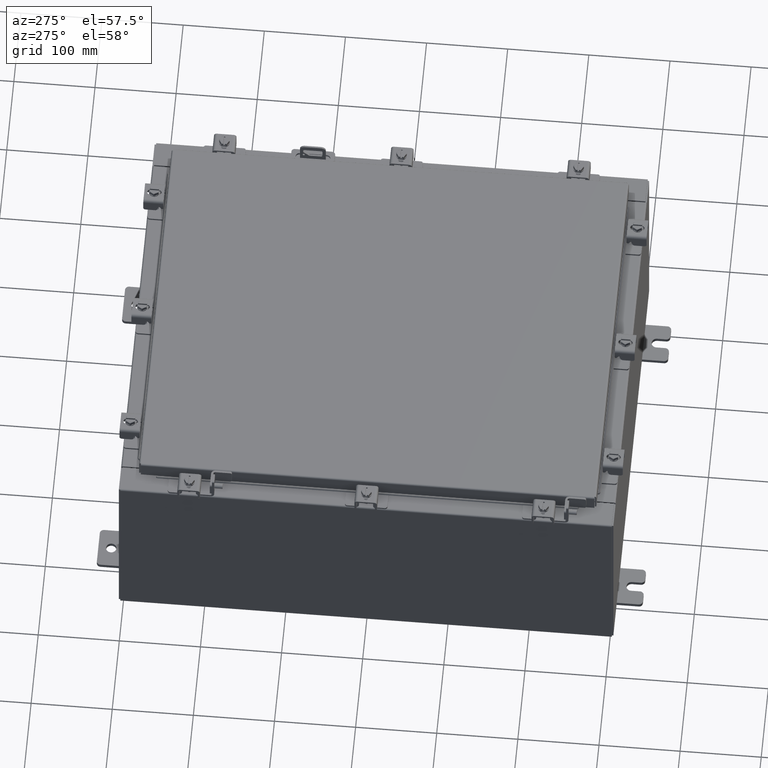
[diagram: clean part render]
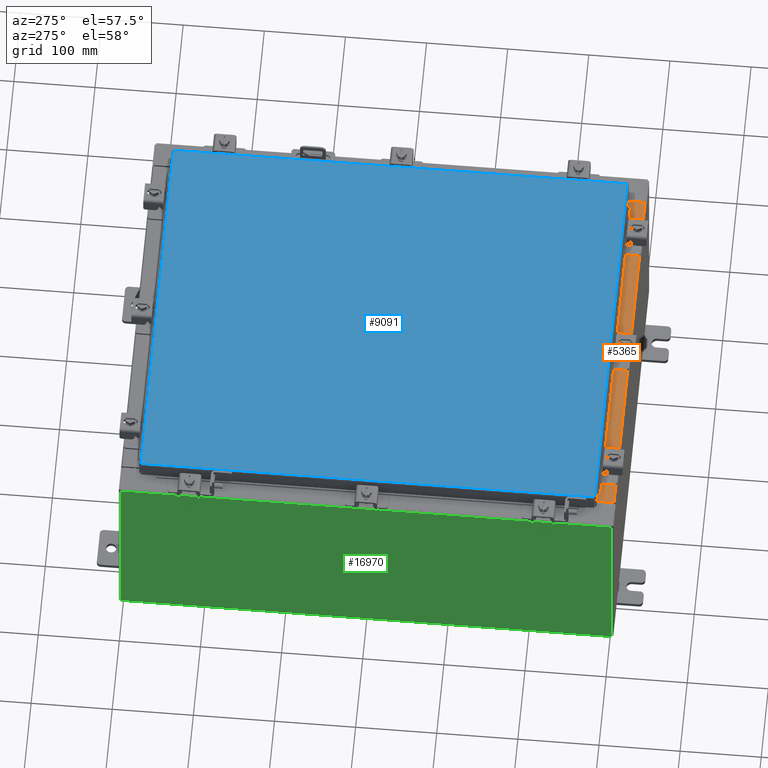
[diagram: same view with three faces highlighted in distinct colors, each labeled with its STEP entity id]
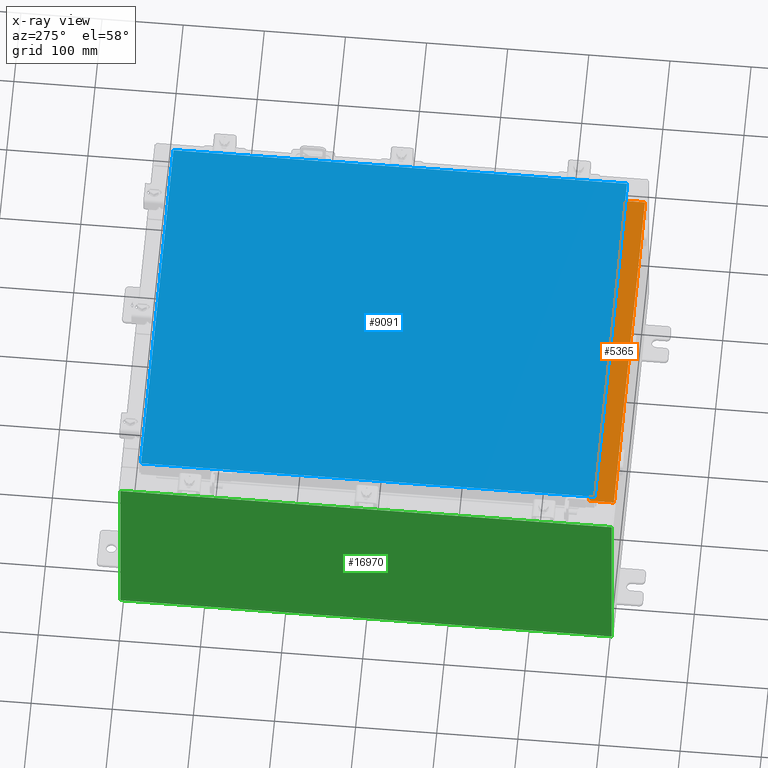
[diagram: x-ray of the same camera — body ghosted, the three highlighted faces saturated]
A machine part, auxiliary view with three faces highlighted in distinct colors.
The next image is the same camera in x-ray (body ghosted, the three faces saturated) — at least one of them is partly hidden behind the body in this view.
Their STEP definitions:

[orange] entity #5365 — the highlighted planar face has unit normal (-0, -0, 1).
#21 = EDGE_CURVE ( 'NONE', #11141, #3687, #13192, .T. ) ;
#881 = EDGE_CURVE ( 'NONE', #19076, #9004, #12891, .T. ) ;
#2588 = CARTESIAN_POINT ( 'NONE',  ( 8.637200000000000000, -1.287299999999999900, 5.000000000000003600 ) ) ;
#2998 = ORIENTED_EDGE ( 'NONE', *, *, #5476, .F. ) ;
#3687 = VERTEX_POINT ( 'NONE', #17228 ) ;
#3908 = VECTOR ( 'NONE', #18289, 39.37007874015748100 ) ;
#4674 = CARTESIAN_POINT ( 'NONE',  ( -8.637200000000000000, -0.07469999999999973900, 5.000000000000000000 ) ) ;
#4784 = FACE_OUTER_BOUND ( 'NONE', #11983, .T. ) ;
#5365 = ADVANCED_FACE ( 'NONE', ( #4784 ), #6549, .T. ) ;
#5476 = EDGE_CURVE ( 'NONE', #19076, #11141, #16521, .T. ) ;
#6422 = DIRECTION ( 'NONE',  ( -0.0000000000000000000, 1.000000000000000000, -3.566381192773190000E-015 ) ) ;
#6491 = CARTESIAN_POINT ( 'NONE',  ( 0.0000000000000000000, 1.782631094477737600E-014, 5.000000000000000000 ) ) ;
#6549 = PLANE ( 'NONE',  #21257 ) ;
#6577 = EDGE_CURVE ( 'NONE', #3687, #9004, #16478, .T. ) ;
#6677 = VECTOR ( 'NONE', #10542, 39.37007874015748100 ) ;
#6753 = ORIENTED_EDGE ( 'NONE', *, *, #6577, .F. ) ;
#7965 = ORIENTED_EDGE ( 'NONE', *, *, #21, .F. ) ;
#8126 = CARTESIAN_POINT ( 'NONE',  ( 8.637200000000000000, -1.287299999999999900, 5.000000000000004400 ) ) ;
#8329 = DIRECTION ( 'NONE',  ( 0.0000000000000000000, 3.566381192773190000E-015, 1.000000000000000000 ) ) ;
#9004 = VERTEX_POINT ( 'NONE', #11886 ) ;
#10542 = DIRECTION ( 'NONE',  ( -0.0000000000000000000, -1.000000000000000000, 3.566381192773190000E-015 ) ) ;
#11141 = VERTEX_POINT ( 'NONE', #8126 ) ;
#11886 = CARTESIAN_POINT ( 'NONE',  ( -8.637200000000000000, -0.08770000000000081900, 5.000000000000000000 ) ) ;
#11983 = EDGE_LOOP ( 'NONE', ( #6753, #7965, #2998, #16092 ) ) ;
#12280 = CARTESIAN_POINT ( 'NONE',  ( 8.637200000000000000, -1.300299999999999800, 5.000000000000004400 ) ) ;
#12891 = LINE ( 'NONE', #21177, #17520 ) ;
#13192 = LINE ( 'NONE', #2588, #3908 ) ;
#16092 = ORIENTED_EDGE ( 'NONE', *, *, #881, .T. ) ;
#16478 = LINE ( 'NONE', #4674, #19962 ) ;
#16521 = LINE ( 'NONE', #12280, #6677 ) ;
#17228 = CARTESIAN_POINT ( 'NONE',  ( -8.637200000000000000, -1.287299999999999200, 5.000000000000004400 ) ) ;
#17520 = VECTOR ( 'NONE', #17773, 39.37007874015748100 ) ;
#17773 = DIRECTION ( 'NONE',  ( -1.000000000000000000, -6.325772226333218300E-017, 2.256011509776178200E-031 ) ) ;
#18289 = DIRECTION ( 'NONE',  ( -1.000000000000000000, 0.0000000000000000000, 0.0000000000000000000 ) ) ;
#19076 = VERTEX_POINT ( 'NONE', #20081 ) ;
#19962 = VECTOR ( 'NONE', #6422, 39.37007874015748100 ) ;
#20081 = CARTESIAN_POINT ( 'NONE',  ( 8.637200000000000000, -0.08770000000000047200, 5.000000000000000000 ) ) ;
#20459 = DIRECTION ( 'NONE',  ( 0.0000000000000000000, -1.000000000000000000, 3.566381192773190000E-015 ) ) ;
#21177 = CARTESIAN_POINT ( 'NONE',  ( 5.547702242495411600E-018, -0.08770000000000081900, 5.000000000000000000 ) ) ;
#21257 = AXIS2_PLACEMENT_3D ( 'NONE', #6491, #8329, #20459 ) ;

[blue] entity #9091 — the highlighted planar face has unit normal (0, 0, -1).
#1045 = DIRECTION ( 'NONE',  ( 0.0000000000000000000, -1.000000000000000000, 0.0000000000000000000 ) ) ;
#1265 = CARTESIAN_POINT ( 'NONE',  ( -9.006300000000001300, -11.00629999999999600, 0.0000000000000000000 ) ) ;
#1476 = VERTEX_POINT ( 'NONE', #7967 ) ;
#2284 = CARTESIAN_POINT ( 'NONE',  ( 9.006299999999997800, 11.00630000000000100, -2.185478394931410600E-015 ) ) ;
#2721 = CARTESIAN_POINT ( 'NONE',  ( 9.006299999999997800, 11.00630000000000100, -2.185478394931410600E-015 ) ) ;
#3077 = LINE ( 'NONE', #8408, #7189 ) ;
#3556 = PLANE ( 'NONE',  #8224 ) ;
#5328 = DIRECTION ( 'NONE',  ( 0.0000000000000000000, 0.0000000000000000000, -1.000000000000000000 ) ) ;
#5615 = EDGE_LOOP ( 'NONE', ( #18659, #21388, #9303, #14180 ) ) ;
#6119 = LINE ( 'NONE', #21942, #9149 ) ;
#6542 = EDGE_CURVE ( 'NONE', #1476, #15355, #3077, .T. ) ;
#7189 = VECTOR ( 'NONE', #13656, 39.37007874015748100 ) ;
#7304 = VECTOR ( 'NONE', #12763, 39.37007874015748100 ) ;
#7316 = VERTEX_POINT ( 'NONE', #16075 ) ;
#7903 = DIRECTION ( 'NONE',  ( 1.000000000000000000, -0.0000000000000000000, -0.0000000000000000000 ) ) ;
#7967 = CARTESIAN_POINT ( 'NONE',  ( 9.006299999999997800, -11.00629999999999600, 0.0000000000000000000 ) ) ;
#8224 = AXIS2_PLACEMENT_3D ( 'NONE', #18955, #5328, #17516 ) ;
#8335 = EDGE_CURVE ( 'NONE', #15355, #7316, #17123, .T. ) ;
#8408 = CARTESIAN_POINT ( 'NONE',  ( 9.006299999999997800, -11.00629999999999600, 0.0000000000000000000 ) ) ;
#9091 = ADVANCED_FACE ( 'NONE', ( #13830 ), #3556, .F. ) ;
#9149 = VECTOR ( 'NONE', #1045, 39.37007874015748100 ) ;
#9303 = ORIENTED_EDGE ( 'NONE', *, *, #8335, .T. ) ;
#10106 = EDGE_CURVE ( 'NONE', #7316, #21888, #6119, .T. ) ;
#11679 = VECTOR ( 'NONE', #7903, 39.37007874015748100 ) ;
#12763 = DIRECTION ( 'NONE',  ( -1.000000000000000000, -0.0000000000000000000, -0.0000000000000000000 ) ) ;
#13656 = DIRECTION ( 'NONE',  ( 0.0000000000000000000, 1.000000000000000000, 0.0000000000000000000 ) ) ;
#13830 = FACE_OUTER_BOUND ( 'NONE', #5615, .T. ) ;
#14180 = ORIENTED_EDGE ( 'NONE', *, *, #10106, .T. ) ;
#15355 = VERTEX_POINT ( 'NONE', #2721 ) ;
#16075 = CARTESIAN_POINT ( 'NONE',  ( -9.006300000000001300, 11.00630000000000100, 0.0000000000000000000 ) ) ;
#17123 = LINE ( 'NONE', #2284, #7304 ) ;
#17516 = DIRECTION ( 'NONE',  ( -1.000000000000000000, 0.0000000000000000000, -0.0000000000000000000 ) ) ;
#18308 = CARTESIAN_POINT ( 'NONE',  ( -9.006300000000001300, -11.00629999999999600, 0.0000000000000000000 ) ) ;
#18659 = ORIENTED_EDGE ( 'NONE', *, *, #21090, .T. ) ;
#18955 = CARTESIAN_POINT ( 'NONE',  ( 0.0000000000000000000, 0.0000000000000000000, 0.0000000000000000000 ) ) ;
#19829 = LINE ( 'NONE', #18308, #11679 ) ;
#21090 = EDGE_CURVE ( 'NONE', #21888, #1476, #19829, .T. ) ;
#21388 = ORIENTED_EDGE ( 'NONE', *, *, #6542, .T. ) ;
#21888 = VERTEX_POINT ( 'NONE', #1265 ) ;
#21942 = CARTESIAN_POINT ( 'NONE',  ( -9.006300000000001300, 11.00630000000000100, 0.0000000000000000000 ) ) ;

[green] entity #16970 — the highlighted planar face has unit normal (1, 0, 0).
#190 = CARTESIAN_POINT ( 'NONE',  ( -10.00000000000000000, 11.92530000000000000, 0.01299999999999984700 ) ) ;
#279 = ORIENTED_EDGE ( 'NONE', *, *, #5541, .F. ) ;
#591 = PLANE ( 'NONE',  #3322 ) ;
#1577 = LINE ( 'NONE', #9867, #6804 ) ;
#1841 = VERTEX_POINT ( 'NONE', #5271 ) ;
#2139 = DIRECTION ( 'NONE',  ( -3.523082860860888200E-015, 0.0000000000000000000, 1.000000000000000000 ) ) ;
#2456 = ORIENTED_EDGE ( 'NONE', *, *, #19775, .T. ) ;
#2931 = VECTOR ( 'NONE', #22358, 39.37007874015748100 ) ;
#3322 = AXIS2_PLACEMENT_3D ( 'NONE', #7583, #16374, #5907 ) ;
#3623 = EDGE_CURVE ( 'NONE', #18865, #22229, #16351, .T. ) ;
#3880 = CARTESIAN_POINT ( 'NONE',  ( -10.00000000000003600, -11.92529999999999500, 9.837599999999998300 ) ) ;
#4518 = EDGE_CURVE ( 'NONE', #12392, #18865, #10840, .T. ) ;
#5021 = ORIENTED_EDGE ( 'NONE', *, *, #4518, .T. ) ;
#5271 = CARTESIAN_POINT ( 'NONE',  ( -10.00000000000000000, 11.92530000000000000, 0.01299999999999984300 ) ) ;
#5541 = EDGE_CURVE ( 'NONE', #12392, #1841, #6122, .T. ) ;
#5907 = DIRECTION ( 'NONE',  ( 3.523082860860887800E-015, 0.0000000000000000000, -1.000000000000000000 ) ) ;
#6122 = LINE ( 'NONE', #190, #11315 ) ;
#6415 = DIRECTION ( 'NONE',  ( 3.523082860860888200E-015, 0.0000000000000000000, -1.000000000000000000 ) ) ;
#6804 = VECTOR ( 'NONE', #6415, 39.37007874015748100 ) ;
#7583 = CARTESIAN_POINT ( 'NONE',  ( -10.00000000000000000, 0.0000000000000000000, -3.549164226462045900E-014 ) ) ;
#9867 = CARTESIAN_POINT ( 'NONE',  ( -10.00000000000000000, 11.92530000000000000, -3.549164226462045900E-014 ) ) ;
#10222 = CARTESIAN_POINT ( 'NONE',  ( -10.00000000000003600, -11.92530000000000000, 9.837599999999998300 ) ) ;
#10840 = LINE ( 'NONE', #14395, #11364 ) ;
#11315 = VECTOR ( 'NONE', #12425, 39.37007874015748100 ) ;
#11364 = VECTOR ( 'NONE', #2139, 39.37007874015748100 ) ;
#12392 = VERTEX_POINT ( 'NONE', #20072 ) ;
#12425 = DIRECTION ( 'NONE',  ( -0.0000000000000000000, 1.000000000000000000, -0.0000000000000000000 ) ) ;
#12579 = CARTESIAN_POINT ( 'NONE',  ( -10.00000000000003600, 11.92530000000000000, 9.837599999999998300 ) ) ;
#14395 = CARTESIAN_POINT ( 'NONE',  ( -10.00000000000000000, -11.92530000000000000, -3.549164226462045900E-014 ) ) ;
#15149 = FACE_OUTER_BOUND ( 'NONE', #20149, .T. ) ;
#16351 = LINE ( 'NONE', #10222, #2931 ) ;
#16374 = DIRECTION ( 'NONE',  ( 1.000000000000000000, 0.0000000000000000000, 3.523082860860887800E-015 ) ) ;
#16970 = ADVANCED_FACE ( 'NONE', ( #15149 ), #591, .F. ) ;
#18827 = ORIENTED_EDGE ( 'NONE', *, *, #3623, .T. ) ;
#18865 = VERTEX_POINT ( 'NONE', #3880 ) ;
#19775 = EDGE_CURVE ( 'NONE', #22229, #1841, #1577, .T. ) ;
#20072 = CARTESIAN_POINT ( 'NONE',  ( -10.00000000000000000, -11.92529999999999800, 0.01299999999999984700 ) ) ;
#20149 = EDGE_LOOP ( 'NONE', ( #18827, #2456, #279, #5021 ) ) ;
#22229 = VERTEX_POINT ( 'NONE', #12579 ) ;
#22358 = DIRECTION ( 'NONE',  ( 0.0000000000000000000, 1.000000000000000000, 0.0000000000000000000 ) ) ;